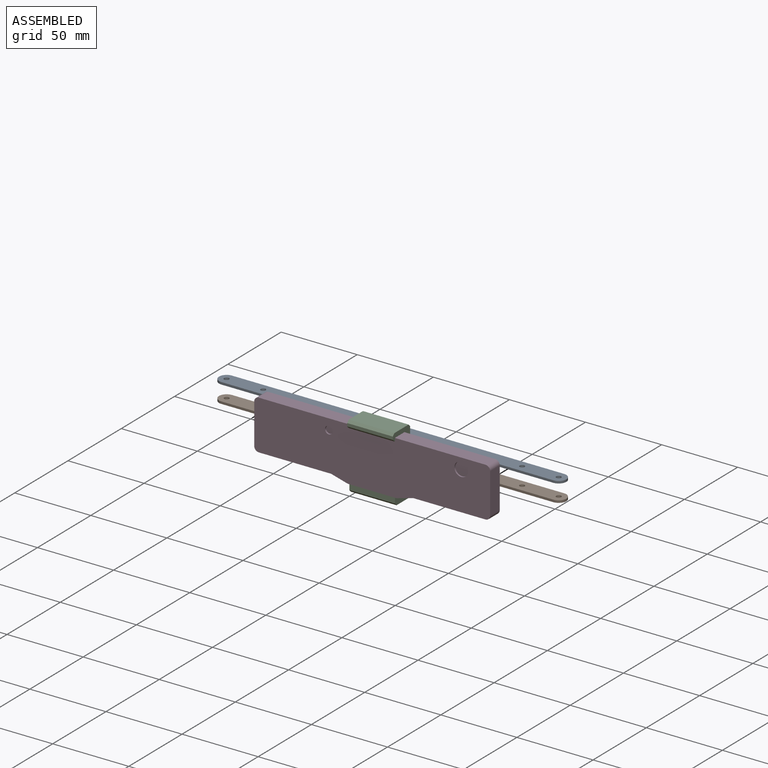
[diagram: assembled view]
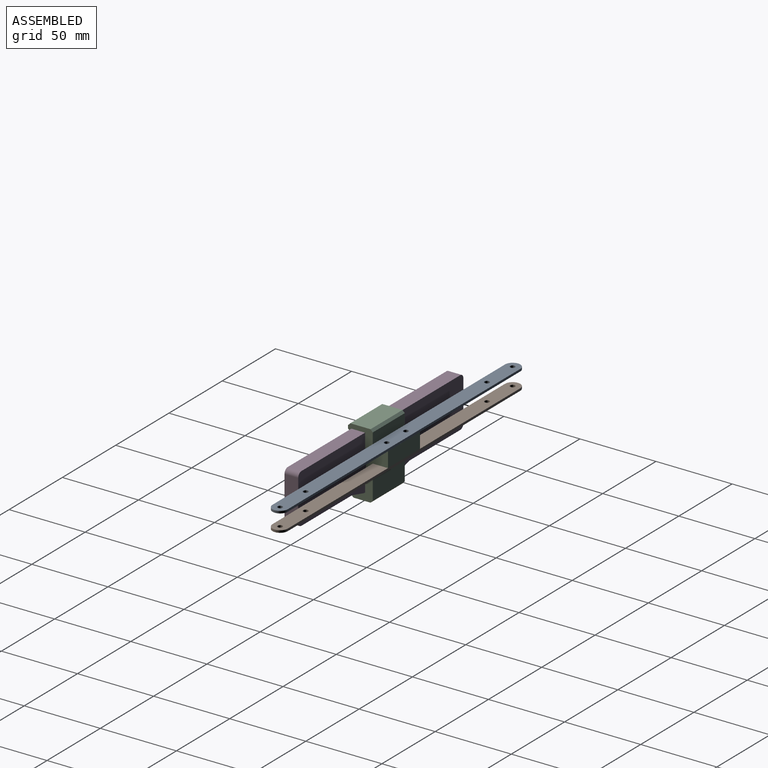
[diagram: assembled view, second angle]
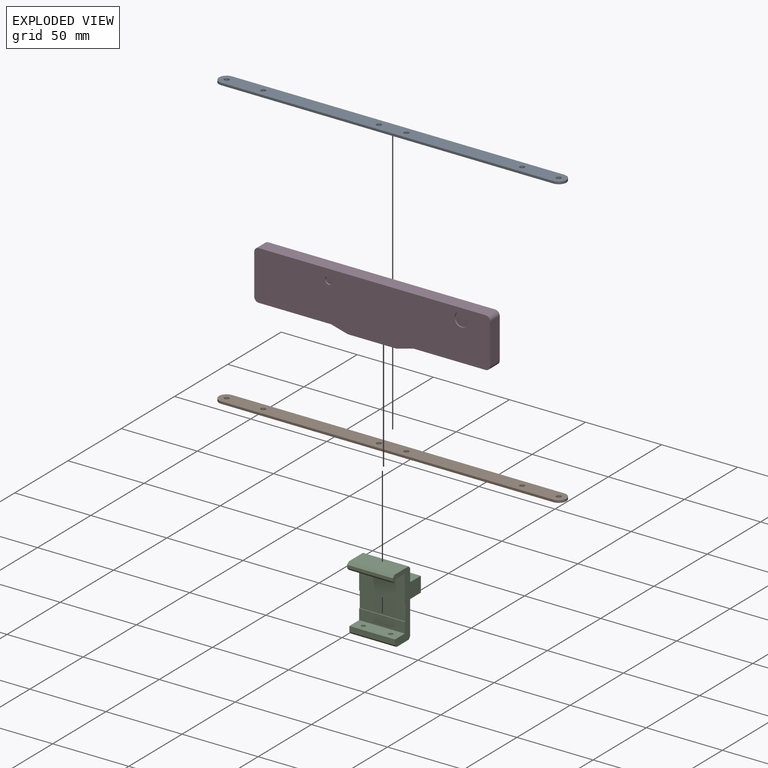
[diagram: exploded view]
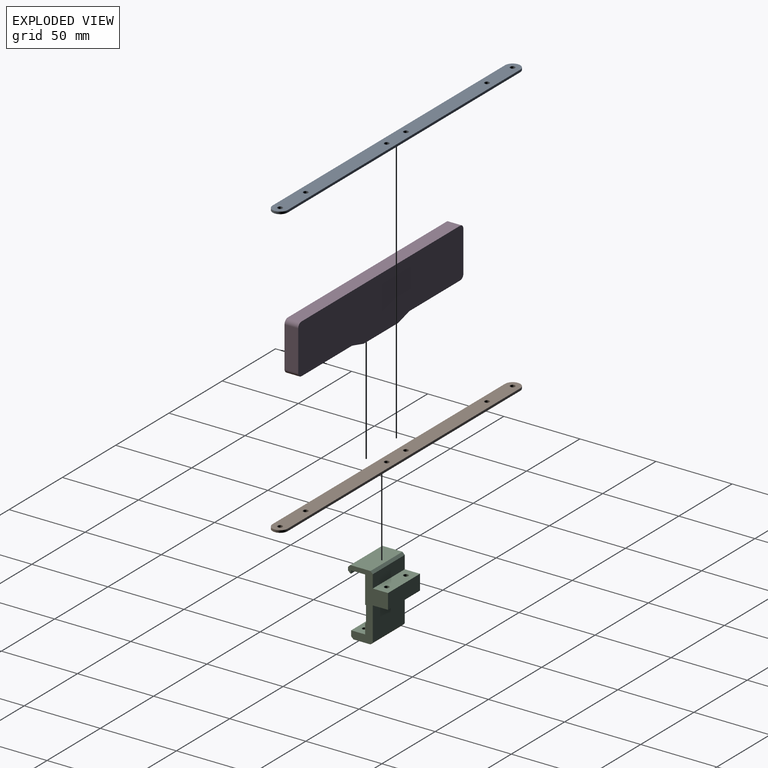
[diagram: exploded view, second angle]
ASSEMBLY  parts=4 mates=3
PART A: 12 faces, bbox 228.2x10x1.5 mm
  f0: plane 218.18x1.5mm, normal (0,1,0), area 327.3mm2, adj f1,f6,f10,f11
  f1: cylinder r=5mm len=10mm, axis (0,0,-1), area 23.6mm2, adj f0,f2,f10,f11
  f2: plane 218.18x1.5mm, normal (0,-1,0), area 327.3mm2, adj f1,f6,f10,f11
  f3: cylinder r=1.6mm len=3.2mm, axis (0,0,-1), area 15.1mm2, adj f10,f11
  f4: cylinder r=1.6mm len=3.2mm, axis (0,0,-1), area 15.1mm2, adj f10,f11
  f5: cylinder r=1.6mm len=3.2mm, axis (0,0,-1), area 15.1mm2, adj f10,f11
  f6: cylinder r=5mm len=10mm, axis (0,0,-1), area 23.6mm2, adj f0,f2,f10,f11
  f7: cylinder r=1.6mm len=3.2mm, axis (0,0,-1), area 15.1mm2, adj f10,f11
  f8: cylinder r=1.6mm len=3.2mm, axis (0,0,-1), area 15.1mm2, adj f10,f11
  f9: cylinder r=1.6mm len=3.2mm, axis (0,0,-1), area 15.1mm2, adj f10,f11
  f10: plane 228.18x10mm, normal (0,0,1), area 2212.1mm2, adj f0,f1,f2,f3,f4,f5,f6,f7
  f11: plane 228.18x10mm, normal (0,0,-1), area 2212.1mm2, adj f0,f1,f2,f3,f4,f5,f6,f7
PART B: same geometry as A
PART C: 31 faces, bbox 30x26.3x43.6 mm
  f0: plane 30x9.23mm, normal (0,0,1), area 265.3mm2, adj f16,f17,f18,f19,f20,f21
  f1: plane 30x11.23mm, normal (0,0,-1), area 297.5mm2, adj f18,f19,f22,f23,f24,f25
  f2: plane 30x22.1mm, normal (0,1,0), area 663mm2, adj f3,f18,f19,f25
  f3: plane 30x10mm, normal (0,0,-1), area 283.9mm2, adj f2,f4,f18,f19,f29,f30
  f4: plane 30x10mm, normal (0,1,0), area 300mm2, adj f3,f5,f18,f19
  f5: plane 30x10mm, normal (0,0,1), area 283.9mm2, adj f4,f6,f18,f19,f29,f30
  f6: plane 30x8.5mm, normal (0,1,0), area 255mm2, adj f5,f18,f19,f26
  f7: plane 30x13.28mm, normal (0,0,1), area 398.2mm2, adj f18,f19,f26,f27
  f8: plane 30x2mm, normal (0,-1,0), area 60mm2, adj f18,f19,f27,f28
  f9: plane 30x0.5mm, normal (0,0,-1), area 15mm2, adj f10,f18,f19,f28
  f10: plane 30x2mm, normal (0,1,0), area 60mm2, adj f9,f11,f18,f19
  f11: plane 30x9.28mm, normal (0,0,-1), area 278.2mm2, adj f10,f12,f18,f19
  f12: plane 30x18mm, normal (0,-1,0), area 540mm2, adj f11,f13,f18,f19
  f13: plane 30x0.58mm, normal (0,0,-1), area 17.2mm2, adj f12,f14,f18,f19
  f14: plane 30x10.65mm, normal (0,-1,0), area 319.5mm2, adj f13,f15,f18,f19
  f15: plane 30x0.58mm, normal (0,0,1), area 17.2mm2, adj f14,f16,f18,f19
  f16: plane 30x6.95mm, normal (0,-1,0), area 208.5mm2, adj f0,f15,f18,f19
  f17: plane 30x3.5mm, normal (0,-1,0), area 105mm2, adj f0,f18,f19,f24
  f18: plane 43.6x26.28mm, normal (1,0,0), area 390.2mm2, adj f0,f1,f2,f3,f4,f5,f6,f7
  f19: plane 43.6x26.28mm, normal (-1,0,0), area 390.2mm2, adj f0,f1,f2,f3,f4,f5,f6,f7
  f20: cylinder r=1.35mm len=3.85mm, axis (0,0,-1), area 32.7mm2, adj f0,f22
  f21: cylinder r=1.35mm len=3.85mm, axis (0,0,-1), area 32.7mm2, adj f0,f23
  f22: cone r=2.5mm half-angle=45deg, axis (0,0,-1), area 19.7mm2, adj f1,f20
  f23: cone r=1.35mm half-angle=45deg, axis (0,0,-1), area 19.7mm2, adj f1,f21
  f24: plane 30x1.5mm, normal (0,-0.71,-0.71), area 63.6mm2, adj f1,f17,f18,f19
  f25: plane 30x1.5mm, normal (0,0.71,-0.71), area 63.6mm2, adj f1,f2,f18,f19
  f26: plane 30x1.5mm, normal (0,0.71,0.71), area 63.6mm2, adj f6,f7,f18,f19
  f27: plane 30x1.5mm, normal (0,-0.71,0.71), area 63.6mm2, adj f7,f8,f18,f19
  f28: plane 30x1.5mm, normal (0,-0.71,-0.71), area 63.6mm2, adj f8,f9,f18,f19
  f29: cylinder r=1.6mm len=10mm, axis (0,0,1), area 100.5mm2, adj f3,f5
  f30: cylinder r=1.6mm len=10mm, axis (0,0,1), area 100.5mm2, adj f3,f5
PART D: 26 faces, bbox 155x9x35.5 mm
  f0: plane 31.2x9mm, normal (0,0,-1), area 271mm2, adj f7,f8,f9,f16,f22,f24
  f1: plane 47.1x9mm, normal (0,0,-1), area 423.9mm2, adj f2,f7,f8,f10
  f2: cylinder r=3mm len=9mm, axis (0,-1,0), area 42.4mm2, adj f1,f3,f7,f8
  f3: plane 26.5x9mm, normal (1,0,0), area 238.5mm2, adj f2,f4,f7,f8
  f4: cylinder r=3mm len=9mm, axis (0,-1,0), area 42.4mm2, adj f3,f5,f7,f8
  f5: plane 149x9mm, normal (0,0,1), area 1341mm2, adj f4,f7,f8,f14
  f6: plane 10.23x9mm, normal (0.26,0,-0.96), area 95.4mm2, adj f7,f8,f9,f10
  f7: plane 155x35.5mm, normal (0,1,0), area 5158.8mm2, adj f0,f1,f2,f3,f4,f5,f6,f9
  f8: plane 155x35.5mm, normal (0,-1,0), area 5075.5mm2, adj f0,f1,f2,f3,f4,f5,f6,f9
  f9: cylinder r=3mm len=9mm, axis (0,-1,0), area 7.2mm2, adj f0,f6,f7,f8
  f10: cylinder r=3mm len=9mm, axis (0,1,0), area 7.2mm2, adj f1,f6,f7,f8
  f11: plane 47.1x9mm, normal (0,0,-1), area 423.9mm2, adj f7,f8,f12,f17
  f12: cylinder r=3mm len=9mm, axis (0,-1,0), area 42.4mm2, adj f7,f8,f11,f13
  f13: plane 26.5x9mm, normal (-1,0,0), area 238.5mm2, adj f7,f8,f12,f14
  f14: cylinder r=3mm len=9mm, axis (0,-1,0), area 42.4mm2, adj f5,f7,f8,f13
  f15: plane 10.23x9mm, normal (-0.26,0,-0.96), area 95.4mm2, adj f7,f8,f16,f17
  f16: cylinder r=3mm len=9mm, axis (0,-1,0), area 7.2mm2, adj f0,f7,f8,f15
  f17: cylinder r=3mm len=9mm, axis (0,1,0), area 7.2mm2, adj f7,f8,f11,f15
  f18: cylinder r=4.5mm len=9mm, axis (0,-1,0), area 28.3mm2, adj f8,f19
  f19: plane 9x9mm, normal (0,-1,0), area 63.6mm2, adj f18
  f20: cylinder r=2.5mm len=5mm, axis (0,-1,0), area 15.7mm2, adj f8,f21
  f21: plane 5x5mm, normal (0,-1,0), area 19.6mm2, adj f20
  f22: cylinder r=1.25mm len=3mm, axis (0,0,-1), area 23.6mm2, adj f0,f23
  f23: plane 2.5x2.5mm, normal (0,0,-1), area 4.9mm2, adj f22
  f24: cylinder r=1.25mm len=3mm, axis (0,0,-1), area 23.6mm2, adj f0,f25
  f25: plane 2.5x2.5mm, normal (0,0,-1), area 4.9mm2, adj f24
PLACE A t=(-29.73,-0.52,46.57)mm
PLACE B t=(-29.73,-0.52,35.07)mm
PLACE C t=(-29.73,-0.52,17.97)mm
PLACE D t=(-29.73,-0.52,17.97)mm
MATE fastened C.f21 <-> D.f22  axis (0,0,1) through (-38.73,3.98,17.97)mm
MATE fastened B.f7 <-> C.f29  axis (0,0,1) through (-20.73,18.71,36.57)mm
MATE fastened A.f7 <-> C.f29  axis (0,0,-1) through (-20.73,18.71,46.57)mm
